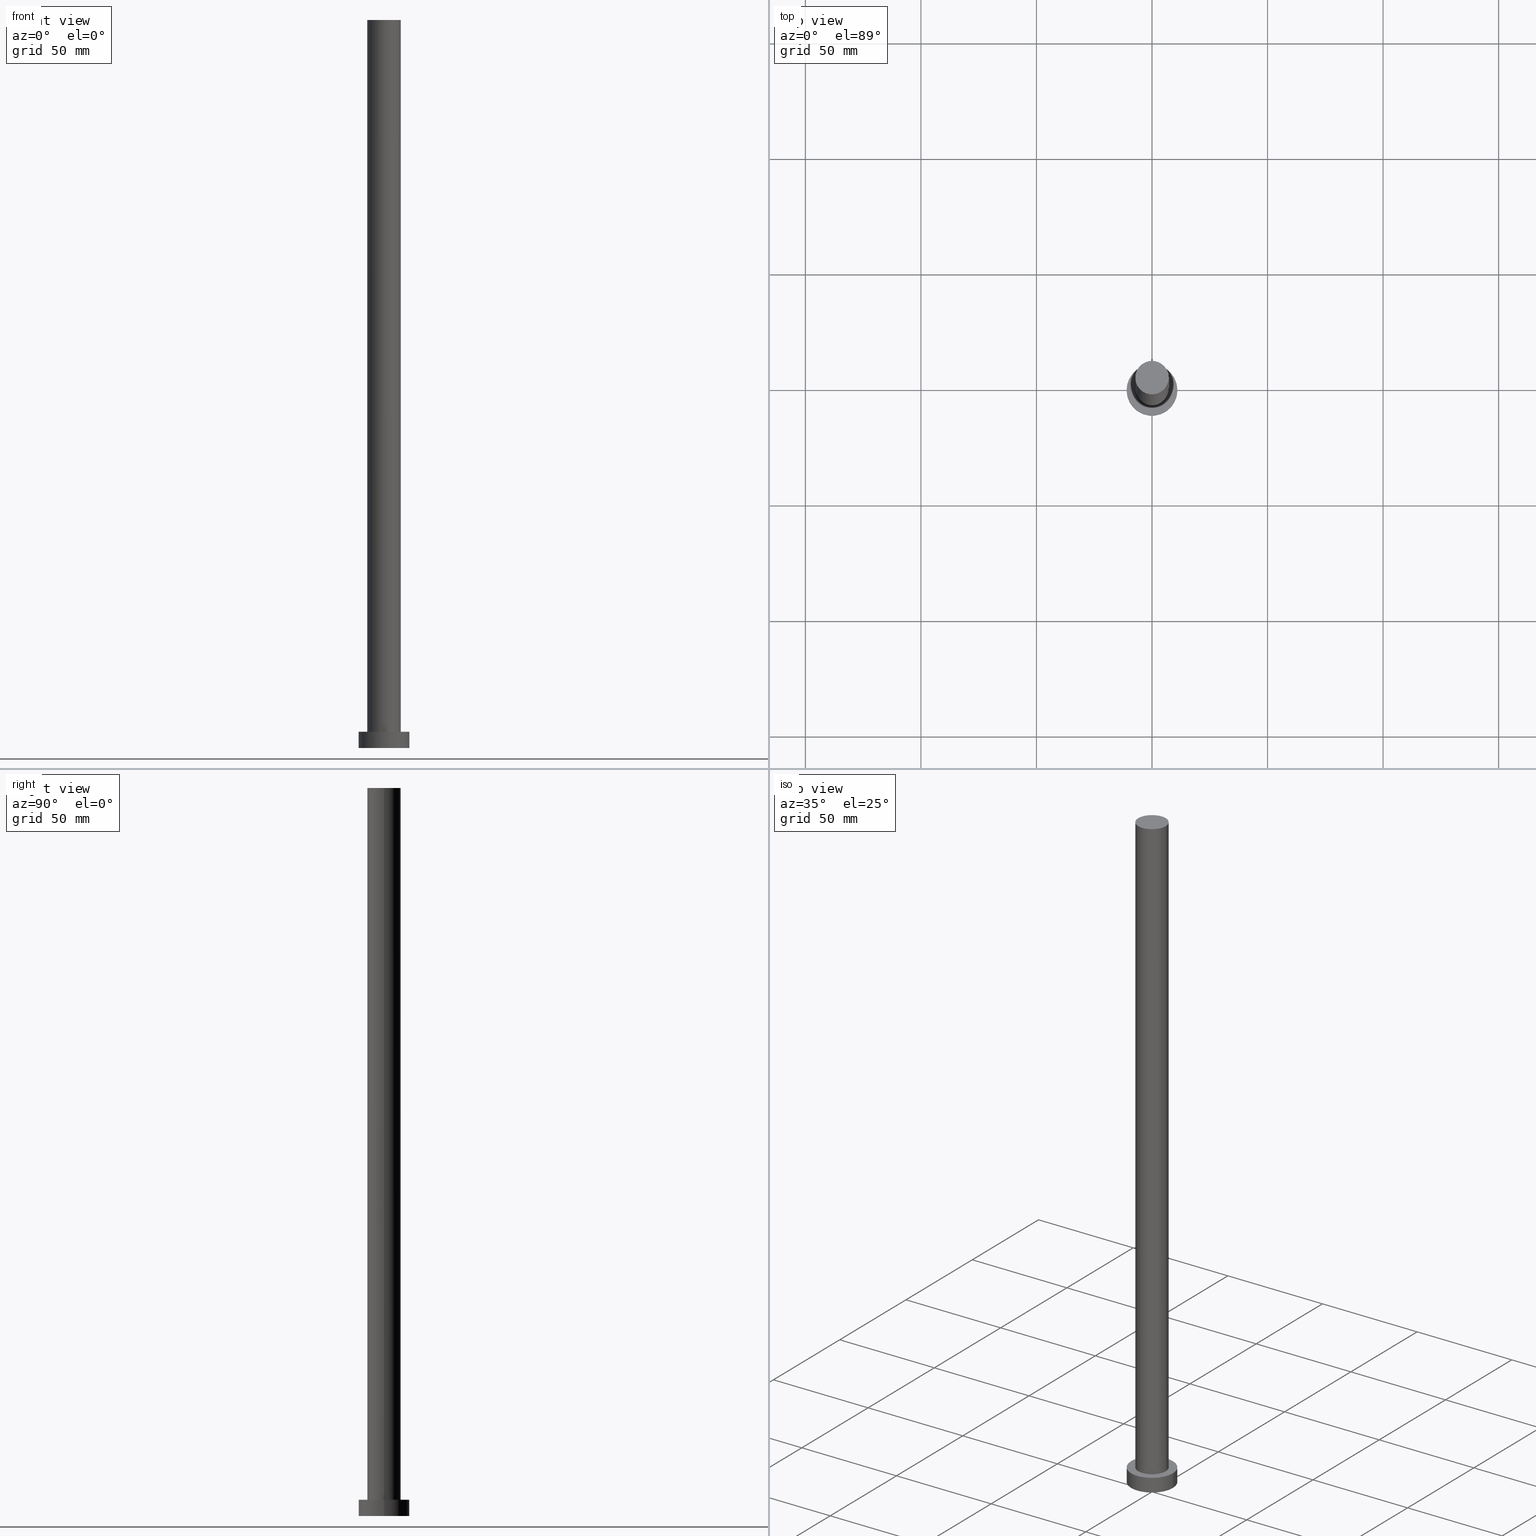
[diagram: canonical four-view strip — front | top / right | iso, engineering-drawing reading convention]
A machine part, canonical four-view strip (front | top / right | iso — engineering-drawing reading convention). The complete STEP part file that produces these views, byte-faithful:
ISO-10303-21;
HEADER;
FILE_DESCRIPTION (( 'STEP AP203' ),
    '1' );
FILE_NAME ('7297.STEP',
    '2023-02-13T10:41:01',
    ( '' ),
    ( '' ),
    'SwSTEP 2.0',
    'SolidWorks 2019',
    '' );
FILE_SCHEMA (( 'CONFIG_CONTROL_DESIGN' ));
ENDSEC;

DATA;
#1 = ORIENTED_EDGE ( 'NONE', *, *, #84, .F. ) ;
#2 = DIRECTION ( 'NONE',  ( 1.000000000000000000, 0.000000000000000000, 0.000000000000000000 ) ) ;
#3 = PERSON_AND_ORGANIZATION ( #132, #31 ) ;
#4 = EDGE_LOOP ( 'NONE', ( #241, #104, #87, #199 ) ) ;
#5 = DIRECTION ( 'NONE',  ( 1.000000000000000000, 0.000000000000000000, -0.000000000000000000 ) ) ;
#6 = CC_DESIGN_PERSON_AND_ORGANIZATION_ASSIGNMENT ( #3, #67, ( #71 ) ) ;
#7 = ORIENTED_EDGE ( 'NONE', *, *, #64, .F. ) ;
#8 = AXIS2_PLACEMENT_3D ( 'NONE', #81, #106, #63 ) ;
#9 =( NAMED_UNIT ( * ) SI_UNIT ( $, .STERADIAN. ) SOLID_ANGLE_UNIT ( ) );
#10 = DIRECTION ( 'NONE',  ( 0.000000000000000000, 0.000000000000000000, 1.000000000000000000 ) ) ;
#11 = CARTESIAN_POINT ( 'NONE',  ( 0.000000000000000000, 0.000000000000000000, 315.0000000000000000 ) ) ;
#12 = AXIS2_PLACEMENT_3D ( 'NONE', #65, #124, #5 ) ;
#13 = CC_DESIGN_APPROVAL ( #251, ( #93 ) ) ;
#14 = DIRECTION ( 'NONE',  ( 0.000000000000000000, 0.000000000000000000, 1.000000000000000000 ) ) ;
#15 = DIRECTION ( 'NONE',  ( -1.000000000000000000, 0.000000000000000000, 0.000000000000000000 ) ) ;
#16 = PERSON_AND_ORGANIZATION_ROLE ( 'creator' ) ;
#17 = ADVANCED_FACE ( 'NONE', ( #164 ), #130, .F. ) ;
#18 = DATE_AND_TIME ( #36, #209 ) ;
#19 = EDGE_LOOP ( 'NONE', ( #85, #180, #29, #255 ) ) ;
#20 = PERSON_AND_ORGANIZATION_ROLE ( 'design_owner' ) ;
#21 = CARTESIAN_POINT ( 'NONE',  ( 0.000000000000000000, 0.000000000000000000, 7.000000000000000000 ) ) ;
#22 = AXIS2_PLACEMENT_3D ( 'NONE', #236, #60, #42 ) ;
#23 = PRODUCT ( '7297', '7297', '', ( #233 ) ) ;
#24 = DIRECTION ( 'NONE',  ( -1.000000000000000000, 0.000000000000000000, 0.000000000000000000 ) ) ;
#25 =( GEOMETRIC_REPRESENTATION_CONTEXT ( 3 ) GLOBAL_UNCERTAINTY_ASSIGNED_CONTEXT ( ( #139 ) ) GLOBAL_UNIT_ASSIGNED_CONTEXT ( ( #35, #133, #9 ) ) REPRESENTATION_CONTEXT ( 'NONE', 'WORKASPACE' ) );
#26 = EDGE_CURVE ( 'NONE', #197, #89, #116, .T. ) ;
#27 = SHAPE_DEFINITION_REPRESENTATION ( #239, #177 ) ;
#28 = DIRECTION ( 'NONE',  ( 0.000000000000000000, 0.000000000000000000, 1.000000000000000000 ) ) ;
#29 = ORIENTED_EDGE ( 'NONE', *, *, #237, .T. ) ;
#30 = FACE_OUTER_BOUND ( 'NONE', #4, .T. ) ;
#31 = ORGANIZATION ( 'NEUR�EN�', 'NEUR�EN�', '' ) ;
#32 = DIRECTION ( 'NONE',  ( 1.000000000000000000, 0.000000000000000000, 0.000000000000000000 ) ) ;
#33 = CARTESIAN_POINT ( 'NONE',  ( 11.00000000000000000, 1.347111479062088405E-15, 7.000000000000000000 ) ) ;
#34 = CARTESIAN_POINT ( 'NONE',  ( 0.000000000000000000, 0.000000000000000000, 315.0000000000000000 ) ) ;
#35 =( LENGTH_UNIT ( ) NAMED_UNIT ( * ) SI_UNIT ( .MILLI., .METRE. ) );
#36 = CALENDAR_DATE ( 2023, 13, 2 ) ;
#37 = PERSON_AND_ORGANIZATION ( #132, #31 ) ;
#38 = COORDINATED_UNIVERSAL_TIME_OFFSET ( 1, 0, .AHEAD. ) ;
#39 = AXIS2_PLACEMENT_3D ( 'NONE', #187, #47, #204 ) ;
#40 = DESIGN_CONTEXT ( 'detailed design', #148, 'design' ) ;
#41 = COORDINATED_UNIVERSAL_TIME_OFFSET ( 1, 0, .AHEAD. ) ;
#42 = DIRECTION ( 'NONE',  ( 1.000000000000000000, 0.000000000000000000, 0.000000000000000000 ) ) ;
#43 = DATE_AND_TIME ( #145, #182 ) ;
#44 = CARTESIAN_POINT ( 'NONE',  ( 0.000000000000000000, 0.000000000000000000, 315.0000000000000000 ) ) ;
#45 = ADVANCED_FACE ( 'NONE', ( #245 ), #143, .T. ) ;
#46 = PERSON_AND_ORGANIZATION ( #132, #31 ) ;
#47 = DIRECTION ( 'NONE',  ( -0.000000000000000000, -0.000000000000000000, -1.000000000000000000 ) ) ;
#48 = ORIENTED_EDGE ( 'NONE', *, *, #211, .T. ) ;
#49 = EDGE_LOOP ( 'NONE', ( #161, #48 ) ) ;
#50 = CIRCLE ( 'NONE', #140, 7.250000000000000000 ) ;
#51 = FACE_OUTER_BOUND ( 'NONE', #19, .T. ) ;
#52 = ADVANCED_FACE ( 'NONE', ( #30 ), #129, .T. ) ;
#53 = DIRECTION ( 'NONE',  ( 1.000000000000000000, 0.000000000000000000, 0.000000000000000000 ) ) ;
#54 = CC_DESIGN_PERSON_AND_ORGANIZATION_ASSIGNMENT ( #121, #20, ( #23 ) ) ;
#55 = CARTESIAN_POINT ( 'NONE',  ( -7.250000000000000000, 0.000000000000000000, 7.000000000000000000 ) ) ;
#56 = DIRECTION ( 'NONE',  ( -0.000000000000000000, -0.000000000000000000, -1.000000000000000000 ) ) ;
#57 = ADVANCED_FACE ( 'NONE', ( #219 ), #112, .T. ) ;
#58 = ORIENTED_EDGE ( 'NONE', *, *, #134, .F. ) ;
#59 = CIRCLE ( 'NONE', #22, 11.00000000000000000 ) ;
#60 = DIRECTION ( 'NONE',  ( 0.000000000000000000, 0.000000000000000000, 1.000000000000000000 ) ) ;
#61 = VECTOR ( 'NONE', #208, 1000.000000000000000 ) ;
#62 = CARTESIAN_POINT ( 'NONE',  ( -7.250000000000000000, 0.000000000000000000, 315.0000000000000000 ) ) ;
#63 = DIRECTION ( 'NONE',  ( 1.000000000000000000, 0.000000000000000000, 0.000000000000000000 ) ) ;
#64 = EDGE_CURVE ( 'NONE', #178, #110, #59, .T. ) ;
#65 = CARTESIAN_POINT ( 'NONE',  ( 0.000000000000000000, 0.000000000000000000, 0.000000000000000000 ) ) ;
#66 = CIRCLE ( 'NONE', #123, 7.250000000000000000 ) ;
#67 = PERSON_AND_ORGANIZATION_ROLE ( 'creator' ) ;
#68 = VERTEX_POINT ( 'NONE', #62 ) ;
#69 = CARTESIAN_POINT ( 'NONE',  ( 0.000000000000000000, 0.000000000000000000, 7.000000000000000000 ) ) ;
#70 = CARTESIAN_POINT ( 'NONE',  ( 7.250000000000000000, 8.878689293818310074E-16, 7.000000000000000000 ) ) ;
#71 = PRODUCT_DEFINITION_FORMATION_WITH_SPECIFIED_SOURCE ( 'LIBOVOLN�', '', #23, .NOT_KNOWN. ) ;
#72 = DIRECTION ( 'NONE',  ( 1.000000000000000000, 0.000000000000000000, 0.000000000000000000 ) ) ;
#73 = EDGE_CURVE ( 'NONE', #89, #197, #92, .T. ) ;
#74 = DIRECTION ( 'NONE',  ( 1.000000000000000000, 0.000000000000000000, -0.000000000000000000 ) ) ;
#75 = DIRECTION ( 'NONE',  ( -0.000000000000000000, -0.000000000000000000, -1.000000000000000000 ) ) ;
#76 = AXIS2_PLACEMENT_3D ( 'NONE', #141, #144, #128 ) ;
#77 = CC_DESIGN_DATE_AND_TIME_ASSIGNMENT ( #183, #240, ( #99 ) ) ;
#78 = EDGE_LOOP ( 'NONE', ( #158, #166 ) ) ;
#79 = CALENDAR_DATE ( 2023, 13, 2 ) ;
#80 = EDGE_CURVE ( 'NONE', #216, #223, #234, .T. ) ;
#81 = CARTESIAN_POINT ( 'NONE',  ( 0.000000000000000000, 0.000000000000000000, 7.000000000000000000 ) ) ;
#82 = EDGE_LOOP ( 'NONE', ( #146, #162, #195, #122 ) ) ;
#83 = LOCAL_TIME ( 11, 41, 1.000000000000000000, #229 ) ;
#84 = EDGE_CURVE ( 'NONE', #110, #178, #235, .T. ) ;
#85 = ORIENTED_EDGE ( 'NONE', *, *, #115, .F. ) ;
#86 = CALENDAR_DATE ( 2023, 13, 2 ) ;
#87 = ORIENTED_EDGE ( 'NONE', *, *, #134, .T. ) ;
#88 = PERSON_AND_ORGANIZATION_ROLE ( 'classification_officer' ) ;
#89 = VERTEX_POINT ( 'NONE', #126 ) ;
#90 = FACE_OUTER_BOUND ( 'NONE', #78, .T. ) ;
#91 = DIRECTION ( 'NONE',  ( 1.000000000000000000, 0.000000000000000000, 0.000000000000000000 ) ) ;
#92 = CIRCLE ( 'NONE', #111, 11.00000000000000000 ) ;
#93 = PRODUCT_DEFINITION ( 'NEZN�M�', '', #71, #40 ) ;
#94 = CARTESIAN_POINT ( 'NONE',  ( 7.250000000000000000, 8.878689293818310074E-16, 315.0000000000000000 ) ) ;
#95 = AXIS2_PLACEMENT_3D ( 'NONE', #171, #114, #32 ) ;
#96 = LINE ( 'NONE', #151, #215 ) ;
#97 = DIRECTION ( 'NONE',  ( -0.000000000000000000, -0.000000000000000000, -1.000000000000000000 ) ) ;
#98 = PERSON_AND_ORGANIZATION ( #132, #31 ) ;
#99 = SECURITY_CLASSIFICATION ( '', '', #179 ) ;
#100 = APPROVAL_ROLE ( '' ) ;
#101 = DATE_TIME_ROLE ( 'creation_date' ) ;
#102 = CC_DESIGN_APPROVAL ( #213, ( #99 ) ) ;
#103 = APPROVAL_ROLE ( '' ) ;
#104 = ORIENTED_EDGE ( 'NONE', *, *, #115, .T. ) ;
#105 = APPROVAL_DATE_TIME ( #157, #207 ) ;
#106 = DIRECTION ( 'NONE',  ( 0.000000000000000000, 0.000000000000000000, 1.000000000000000000 ) ) ;
#107 = CARTESIAN_POINT ( 'NONE',  ( -11.00000000000000000, 0.000000000000000000, 0.000000000000000000 ) ) ;
#108 = EDGE_LOOP ( 'NONE', ( #1, #7 ) ) ;
#109 = APPROVAL_DATE_TIME ( #43, #213 ) ;
#110 = VERTEX_POINT ( 'NONE', #107 ) ;
#111 = AXIS2_PLACEMENT_3D ( 'NONE', #203, #185, #198 ) ;
#112 = CYLINDRICAL_SURFACE ( 'NONE', #39, 11.00000000000000000 ) ;
#113 = VECTOR ( 'NONE', #56, 1000.000000000000000 ) ;
#114 = DIRECTION ( 'NONE',  ( 0.000000000000000000, 0.000000000000000000, 1.000000000000000000 ) ) ;
#115 = EDGE_CURVE ( 'NONE', #238, #223, #184, .T. ) ;
#116 = CIRCLE ( 'NONE', #8, 11.00000000000000000 ) ;
#117 = APPLICATION_PROTOCOL_DEFINITION ( 'international standard', 'config_control_design', 1994, #250 ) ;
#118 = CC_DESIGN_PERSON_AND_ORGANIZATION_ASSIGNMENT ( #127, #88, ( #99 ) ) ;
#119 = LOCAL_TIME ( 11, 41, 1.000000000000000000, #175 ) ;
#120 = APPROVAL_STATUS ( 'not_yet_approved' ) ;
#121 = PERSON_AND_ORGANIZATION ( #132, #31 ) ;
#122 = ORIENTED_EDGE ( 'NONE', *, *, #84, .T. ) ;
#123 = AXIS2_PLACEMENT_3D ( 'NONE', #69, #14, #53 ) ;
#124 = DIRECTION ( 'NONE',  ( 0.000000000000000000, 0.000000000000000000, 1.000000000000000000 ) ) ;
#125 = EDGE_CURVE ( 'NONE', #68, #238, #50, .T. ) ;
#126 = CARTESIAN_POINT ( 'NONE',  ( -11.00000000000000000, 0.000000000000000000, 7.000000000000000000 ) ) ;
#127 = PERSON_AND_ORGANIZATION ( #132, #31 ) ;
#128 = DIRECTION ( 'NONE',  ( -1.000000000000000000, 0.000000000000000000, 0.000000000000000000 ) ) ;
#129 = CYLINDRICAL_SURFACE ( 'NONE', #214, 7.250000000000000000 ) ;
#130 = PLANE ( 'NONE',  #12 ) ;
#131 = APPROVAL_PERSON_ORGANIZATION ( #46, #213, #202 ) ;
#132 = PERSON ( 'NEUR�EN�', 'NEUR�EN�', 'NEUR�EN�', ('NEUR�EN�'), ('NEUR�EN�'), ('NEUR�EN�') ) ;
#133 =( NAMED_UNIT ( * ) PLANE_ANGLE_UNIT ( ) SI_UNIT ( $, .RADIAN. ) );
#134 = EDGE_CURVE ( 'NONE', #223, #216, #66, .T. ) ;
#135 = LINE ( 'NONE', #189, #113 ) ;
#136 = PRODUCT_RELATED_PRODUCT_CATEGORY ( 'detail', '', ( #23 ) ) ;
#137 = APPROVAL_DATE_TIME ( #18, #251 ) ;
#138 = ORIENTED_EDGE ( 'NONE', *, *, #26, .F. ) ;
#139 = UNCERTAINTY_MEASURE_WITH_UNIT (LENGTH_MEASURE( 1.000000000000000082E-05 ), #35, 'distance_accuracy_value', 'NONE');
#140 = AXIS2_PLACEMENT_3D ( 'NONE', #11, #246, #72 ) ;
#141 = CARTESIAN_POINT ( 'NONE',  ( 0.000000000000000000, 0.000000000000000000, 7.000000000000000000 ) ) ;
#142 = CARTESIAN_POINT ( 'NONE',  ( 0.000000000000000000, 0.000000000000000000, 0.000000000000000000 ) ) ;
#143 = CYLINDRICAL_SURFACE ( 'NONE', #76, 11.00000000000000000 ) ;
#144 = DIRECTION ( 'NONE',  ( -0.000000000000000000, -0.000000000000000000, -1.000000000000000000 ) ) ;
#145 = CALENDAR_DATE ( 2023, 13, 2 ) ;
#146 = ORIENTED_EDGE ( 'NONE', *, *, #150, .F. ) ;
#147 = PLANE ( 'NONE',  #201 ) ;
#148 = APPLICATION_CONTEXT ( 'configuration controlled 3d designs of mechanical parts and assemblies' ) ;
#149 = CARTESIAN_POINT ( 'NONE',  ( 0.000000000000000000, 0.000000000000000000, 7.000000000000000000 ) ) ;
#150 = EDGE_CURVE ( 'NONE', #197, #178, #96, .T. ) ;
#151 = CARTESIAN_POINT ( 'NONE',  ( 11.00000000000000000, 1.347111479062088405E-15, 7.000000000000000000 ) ) ;
#152 = CARTESIAN_POINT ( 'NONE',  ( 0.000000000000000000, 0.000000000000000000, 315.0000000000000000 ) ) ;
#153 = CC_DESIGN_PERSON_AND_ORGANIZATION_ASSIGNMENT ( #98, #16, ( #93 ) ) ;
#154 = DIRECTION ( 'NONE',  ( 0.000000000000000000, 0.000000000000000000, 1.000000000000000000 ) ) ;
#155 = CIRCLE ( 'NONE', #95, 7.250000000000000000 ) ;
#156 = CALENDAR_DATE ( 2023, 13, 2 ) ;
#157 = DATE_AND_TIME ( #79, #119 ) ;
#158 = ORIENTED_EDGE ( 'NONE', *, *, #73, .T. ) ;
#159 = AXIS2_PLACEMENT_3D ( 'NONE', #142, #28, #217 ) ;
#160 = AXIS2_PLACEMENT_3D ( 'NONE', #34, #226, #15 ) ;
#161 = ORIENTED_EDGE ( 'NONE', *, *, #125, .T. ) ;
#162 = ORIENTED_EDGE ( 'NONE', *, *, #73, .F. ) ;
#163 = CC_DESIGN_PERSON_AND_ORGANIZATION_ASSIGNMENT ( #218, #220, ( #71 ) ) ;
#164 = FACE_OUTER_BOUND ( 'NONE', #108, .T. ) ;
#165 = APPROVAL_STATUS ( 'not_yet_approved' ) ;
#166 = ORIENTED_EDGE ( 'NONE', *, *, #26, .T. ) ;
#167 = ADVANCED_FACE ( 'NONE', ( #228, #90 ), #147, .T. ) ;
#168 = LINE ( 'NONE', #210, #61 ) ;
#169 = APPROVAL_PERSON_ORGANIZATION ( #194, #251, #103 ) ;
#170 = CARTESIAN_POINT ( 'NONE',  ( 11.00000000000000000, 1.347111479062088405E-15, 0.000000000000000000 ) ) ;
#171 = CARTESIAN_POINT ( 'NONE',  ( 0.000000000000000000, 0.000000000000000000, 315.0000000000000000 ) ) ;
#172 = APPROVAL_PERSON_ORGANIZATION ( #37, #207, #100 ) ;
#173 = APPLICATION_PROTOCOL_DEFINITION ( 'international standard', 'config_control_design', 1994, #148 ) ;
#174 = EDGE_CURVE ( 'NONE', #89, #110, #168, .T. ) ;
#175 = COORDINATED_UNIVERSAL_TIME_OFFSET ( 1, 0, .AHEAD. ) ;
#176 = ORIENTED_EDGE ( 'NONE', *, *, #150, .T. ) ;
#177 = ADVANCED_BREP_SHAPE_REPRESENTATION ( '7297', ( #231, #249 ), #25 ) ;
#178 = VERTEX_POINT ( 'NONE', #170 ) ;
#179 = SECURITY_CLASSIFICATION_LEVEL ( 'unclassified' ) ;
#180 = ORIENTED_EDGE ( 'NONE', *, *, #125, .F. ) ;
#181 = DIRECTION ( 'NONE',  ( 0.000000000000000000, 0.000000000000000000, 1.000000000000000000 ) ) ;
#182 = LOCAL_TIME ( 11, 41, 1.000000000000000000, #41 ) ;
#183 = DATE_AND_TIME ( #86, #225 ) ;
#184 = LINE ( 'NONE', #227, #230 ) ;
#185 = DIRECTION ( 'NONE',  ( 0.000000000000000000, 0.000000000000000000, 1.000000000000000000 ) ) ;
#186 = ORIENTED_EDGE ( 'NONE', *, *, #80, .F. ) ;
#187 = CARTESIAN_POINT ( 'NONE',  ( 0.000000000000000000, 0.000000000000000000, 7.000000000000000000 ) ) ;
#188 = CARTESIAN_POINT ( 'NONE',  ( 0.000000000000000000, 0.000000000000000000, 0.000000000000000000 ) ) ;
#189 = CARTESIAN_POINT ( 'NONE',  ( -7.250000000000000000, 0.000000000000000000, 315.0000000000000000 ) ) ;
#190 = ADVANCED_FACE ( 'NONE', ( #51 ), #192, .T. ) ;
#191 = PLANE ( 'NONE',  #193 ) ;
#192 = CYLINDRICAL_SURFACE ( 'NONE', #160, 7.250000000000000000 ) ;
#193 = AXIS2_PLACEMENT_3D ( 'NONE', #152, #154, #224 ) ;
#194 = PERSON_AND_ORGANIZATION ( #132, #31 ) ;
#195 = ORIENTED_EDGE ( 'NONE', *, *, #174, .T. ) ;
#196 = CLOSED_SHELL ( 'NONE', ( #52, #45, #57, #167, #17, #190, #200 ) ) ;
#197 = VERTEX_POINT ( 'NONE', #33 ) ;
#198 = DIRECTION ( 'NONE',  ( 1.000000000000000000, 0.000000000000000000, 0.000000000000000000 ) ) ;
#199 = ORIENTED_EDGE ( 'NONE', *, *, #237, .F. ) ;
#200 = ADVANCED_FACE ( 'NONE', ( #248 ), #191, .T. ) ;
#201 = AXIS2_PLACEMENT_3D ( 'NONE', #149, #247, #74 ) ;
#202 = APPROVAL_ROLE ( '' ) ;
#203 = CARTESIAN_POINT ( 'NONE',  ( 0.000000000000000000, 0.000000000000000000, 7.000000000000000000 ) ) ;
#204 = DIRECTION ( 'NONE',  ( -1.000000000000000000, 0.000000000000000000, 0.000000000000000000 ) ) ;
#205 = ORIENTED_EDGE ( 'NONE', *, *, #64, .T. ) ;
#206 = CC_DESIGN_APPROVAL ( #207, ( #71 ) ) ;
#207 = APPROVAL ( #120, 'NEUR�EN�' ) ;
#208 = DIRECTION ( 'NONE',  ( -0.000000000000000000, -0.000000000000000000, -1.000000000000000000 ) ) ;
#209 = LOCAL_TIME ( 11, 41, 1.000000000000000000, #38 ) ;
#210 = CARTESIAN_POINT ( 'NONE',  ( -11.00000000000000000, 0.000000000000000000, 7.000000000000000000 ) ) ;
#211 = EDGE_CURVE ( 'NONE', #238, #68, #155, .T. ) ;
#212 = DATE_AND_TIME ( #156, #83 ) ;
#213 = APPROVAL ( #165, 'NEUR�EN�' ) ;
#214 = AXIS2_PLACEMENT_3D ( 'NONE', #44, #221, #24 ) ;
#215 = VECTOR ( 'NONE', #97, 1000.000000000000000 ) ;
#216 = VERTEX_POINT ( 'NONE', #55 ) ;
#217 = DIRECTION ( 'NONE',  ( 1.000000000000000000, 0.000000000000000000, 0.000000000000000000 ) ) ;
#218 = PERSON_AND_ORGANIZATION ( #132, #31 ) ;
#219 = FACE_OUTER_BOUND ( 'NONE', #82, .T. ) ;
#220 = PERSON_AND_ORGANIZATION_ROLE ( 'design_supplier' ) ;
#221 = DIRECTION ( 'NONE',  ( -0.000000000000000000, -0.000000000000000000, -1.000000000000000000 ) ) ;
#222 = CC_DESIGN_DATE_AND_TIME_ASSIGNMENT ( #212, #101, ( #93 ) ) ;
#223 = VERTEX_POINT ( 'NONE', #70 ) ;
#224 = DIRECTION ( 'NONE',  ( 1.000000000000000000, 0.000000000000000000, -0.000000000000000000 ) ) ;
#225 = LOCAL_TIME ( 11, 41, 1.000000000000000000, #244 ) ;
#226 = DIRECTION ( 'NONE',  ( -0.000000000000000000, -0.000000000000000000, -1.000000000000000000 ) ) ;
#227 = CARTESIAN_POINT ( 'NONE',  ( 7.250000000000000000, 8.878689293818310074E-16, 315.0000000000000000 ) ) ;
#228 = FACE_BOUND ( 'NONE', #232, .T. ) ;
#229 = COORDINATED_UNIVERSAL_TIME_OFFSET ( 1, 0, .AHEAD. ) ;
#230 = VECTOR ( 'NONE', #75, 1000.000000000000000 ) ;
#231 = MANIFOLD_SOLID_BREP ( 'P�idat vysunut�m3', #196 ) ;
#232 = EDGE_LOOP ( 'NONE', ( #186, #58 ) ) ;
#233 = MECHANICAL_CONTEXT ( 'NONE', #250, 'mechanical' ) ;
#234 = CIRCLE ( 'NONE', #253, 7.250000000000000000 ) ;
#235 = CIRCLE ( 'NONE', #159, 11.00000000000000000 ) ;
#236 = CARTESIAN_POINT ( 'NONE',  ( 0.000000000000000000, 0.000000000000000000, 0.000000000000000000 ) ) ;
#237 = EDGE_CURVE ( 'NONE', #68, #216, #135, .T. ) ;
#238 = VERTEX_POINT ( 'NONE', #94 ) ;
#239 = PRODUCT_DEFINITION_SHAPE ( 'NONE', 'NONE',  #93 ) ;
#240 = DATE_TIME_ROLE ( 'classification_date' ) ;
#241 = ORIENTED_EDGE ( 'NONE', *, *, #211, .F. ) ;
#242 = ORIENTED_EDGE ( 'NONE', *, *, #174, .F. ) ;
#243 = CC_DESIGN_SECURITY_CLASSIFICATION ( #99, ( #71 ) ) ;
#244 = COORDINATED_UNIVERSAL_TIME_OFFSET ( 1, 0, .AHEAD. ) ;
#245 = FACE_OUTER_BOUND ( 'NONE', #252, .T. ) ;
#246 = DIRECTION ( 'NONE',  ( 0.000000000000000000, 0.000000000000000000, 1.000000000000000000 ) ) ;
#247 = DIRECTION ( 'NONE',  ( 0.000000000000000000, 0.000000000000000000, 1.000000000000000000 ) ) ;
#248 = FACE_OUTER_BOUND ( 'NONE', #49, .T. ) ;
#249 = AXIS2_PLACEMENT_3D ( 'NONE', #188, #10, #91 ) ;
#250 = APPLICATION_CONTEXT ( 'configuration controlled 3d designs of mechanical parts and assemblies' ) ;
#251 = APPROVAL ( #254, 'NEUR�EN�' ) ;
#252 = EDGE_LOOP ( 'NONE', ( #138, #176, #205, #242 ) ) ;
#253 = AXIS2_PLACEMENT_3D ( 'NONE', #21, #181, #2 ) ;
#254 = APPROVAL_STATUS ( 'not_yet_approved' ) ;
#255 = ORIENTED_EDGE ( 'NONE', *, *, #80, .T. ) ;
ENDSEC;
END-ISO-10303-21;
